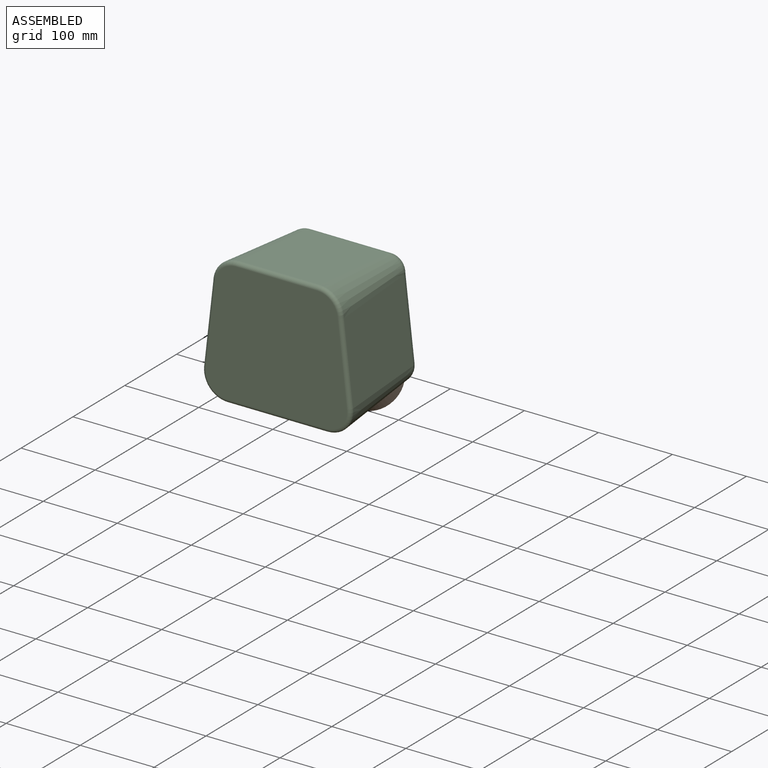
[diagram: assembled view]
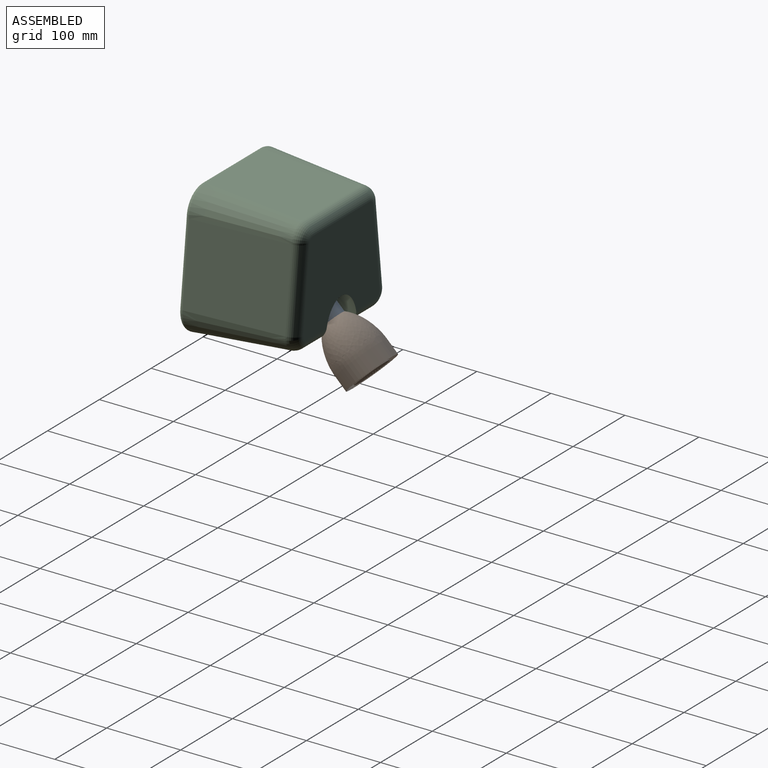
[diagram: assembled view, second angle]
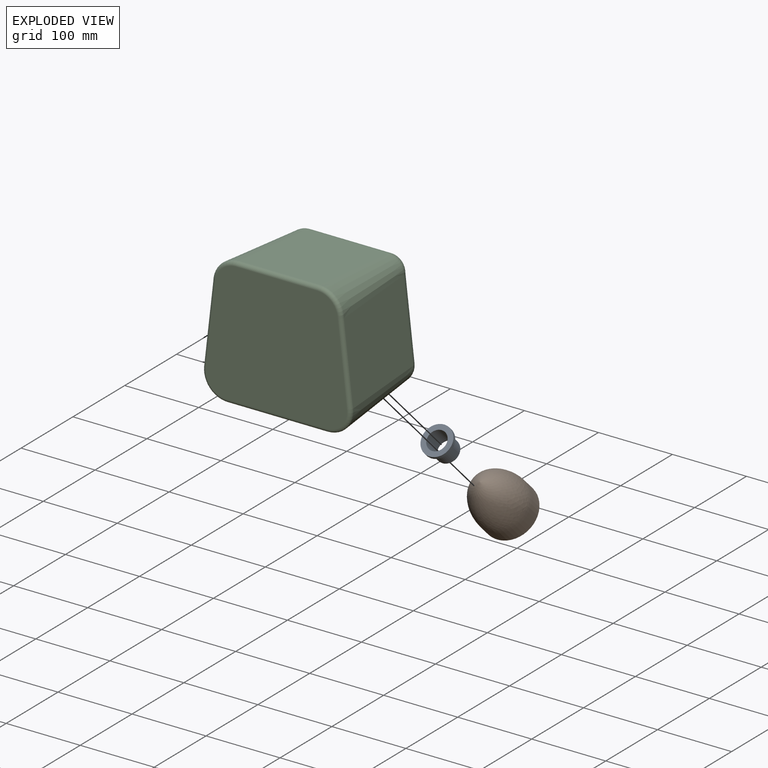
[diagram: exploded view]
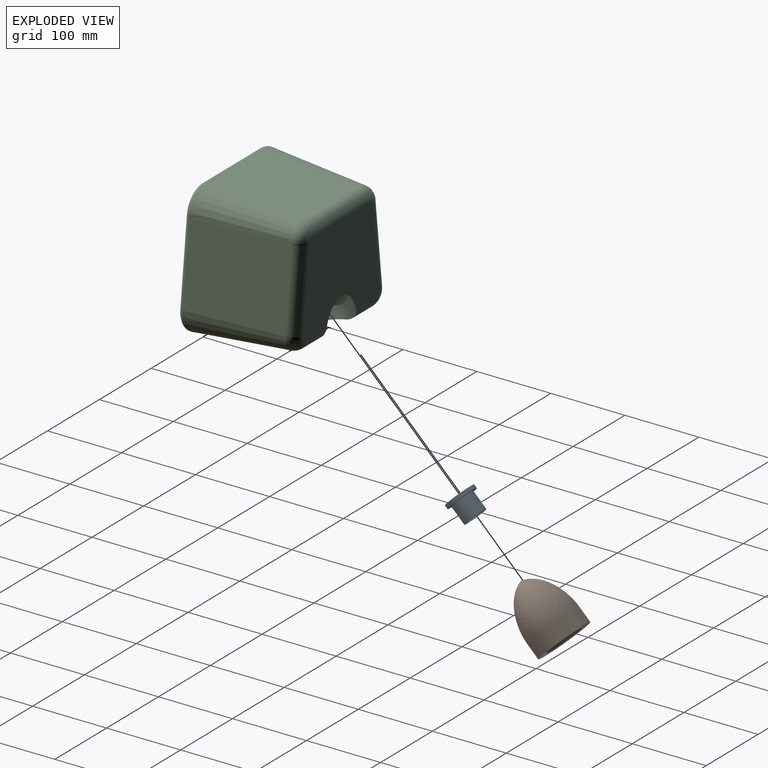
[diagram: exploded view, second angle]
ASSEMBLY  parts=3 mates=2
PART A: 6 faces, bbox 40x30x40 mm
  f0: cylinder r=13mm len=30mm, axis (0,1,0), area 2450.4mm2, adj f2,f3
  f1: cylinder r=15mm len=30mm, axis (0,1,0), area 2356.2mm2, adj f2,f5
  f2: plane 30x30mm, normal (0,-1,0), area 175.9mm2, adj f0,f1
  f3: plane 40x40mm, normal (0,1,0), area 725.7mm2, adj f0,f4
  f4: cylinder r=20mm len=40mm, axis (0,1,0), area 628.3mm2, adj f3,f5
  f5: plane 40x40mm, normal (0,-1,0), area 549.8mm2, adj f1,f4
PART B: 43 faces, bbox 71x82x71 mm
  f0: plane 69.4x69.4mm, normal (0,1,0), area 1973.2mm2, adj f2,f4
  f1: plane 48x48mm, normal (0,1,0), area 1753mm2, adj f2,f8,f10,f12,f14,f16,f18,f20
  f2: cylinder r=24mm len=48mm, axis (0,1,0), area 3091.3mm2, adj f0,f1
  f3: plane 71x71mm, normal (0,1,0), area 176.4mm2, adj f4,f5
  f4: cylinder r=34.7mm len=69.4mm, axis (0,-1,0), area 4469.5mm2, adj f0,f3
  f5: cylinder r=35.5mm len=71mm, axis (0,-1,0), area 4572.6mm2, adj f3,f6
  f6: revolved ~71x71mm, area 11353.6mm2, adj f5
  f7: cone r=0mm half-angle=59deg, axis (0,1,0), area 3.7mm2, adj f8
  f8: cylinder r=1mm len=30mm, axis (0,1,0), area 188.5mm2, adj f1,f7
  f9: cone r=0mm half-angle=59deg, axis (0,1,0), area 3.7mm2, adj f10
  f10: cylinder r=1mm len=30mm, axis (0,1,0), area 188.5mm2, adj f1,f9
  f11: cone r=0mm half-angle=59deg, axis (0,1,0), area 3.7mm2, adj f12
  f12: cylinder r=1mm len=30mm, axis (0,1,0), area 188.5mm2, adj f1,f11
  f13: cone r=0mm half-angle=59deg, axis (0,1,0), area 3.7mm2, adj f14
  f14: cylinder r=1mm len=30mm, axis (0,1,0), area 188.5mm2, adj f1,f13
  f15: cone r=0mm half-angle=59deg, axis (0,1,0), area 3.7mm2, adj f16
  f16: cylinder r=1mm len=30mm, axis (0,1,0), area 188.5mm2, adj f1,f15
  f17: cone r=0mm half-angle=59deg, axis (0,1,0), area 3.7mm2, adj f18
  f18: cylinder r=1mm len=30mm, axis (0,1,0), area 188.5mm2, adj f1,f17
  f19: cone r=0mm half-angle=59deg, axis (0,1,0), area 3.7mm2, adj f20
  f20: cylinder r=1mm len=30mm, axis (0,1,0), area 188.5mm2, adj f1,f19
  f21: cone r=0mm half-angle=59deg, axis (0,1,0), area 3.7mm2, adj f22
  f22: cylinder r=1mm len=30mm, axis (0,1,0), area 188.5mm2, adj f1,f21
  f23: cone r=0mm half-angle=59deg, axis (0,1,0), area 3.7mm2, adj f24
  f24: cylinder r=1mm len=30mm, axis (0,1,0), area 188.5mm2, adj f1,f23
  f25: cone r=0mm half-angle=59deg, axis (0,1,0), area 3.7mm2, adj f26
  f26: cylinder r=1mm len=30mm, axis (0,1,0), area 188.5mm2, adj f1,f25
  f27: cone r=0mm half-angle=59deg, axis (0,1,0), area 3.7mm2, adj f28
  f28: cylinder r=1mm len=30mm, axis (0,1,0), area 188.5mm2, adj f1,f27
  f29: cone r=0mm half-angle=59deg, axis (0,1,0), area 3.7mm2, adj f30
  f30: cylinder r=1mm len=30mm, axis (0,1,0), area 188.5mm2, adj f1,f29
  f31: cone r=0mm half-angle=59deg, axis (0,1,0), area 3.7mm2, adj f32
  f32: cylinder r=1mm len=30mm, axis (0,1,0), area 188.5mm2, adj f1,f31
  f33: cone r=0mm half-angle=59deg, axis (0,1,0), area 3.7mm2, adj f34
  f34: cylinder r=1mm len=30mm, axis (0,1,0), area 188.5mm2, adj f1,f33
  f35: cone r=0mm half-angle=59deg, axis (0,1,0), area 3.7mm2, adj f36
  f36: cylinder r=1mm len=30mm, axis (0,1,0), area 188.5mm2, adj f1,f35
  f37: cone r=0mm half-angle=59deg, axis (0,1,0), area 3.7mm2, adj f38
  f38: cylinder r=1mm len=30mm, axis (0,1,0), area 188.5mm2, adj f1,f37
  f39: cone r=0mm half-angle=59deg, axis (0,1,0), area 3.7mm2, adj f40
  f40: cylinder r=1mm len=30mm, axis (0,1,0), area 188.5mm2, adj f1,f39
  f41: cone r=0mm half-angle=59deg, axis (0,1,0), area 3.7mm2, adj f42
  f42: cylinder r=1mm len=30mm, axis (0,1,0), area 188.5mm2, adj f1,f41
PART C: 29 faces, bbox 205.9x167.4x183 mm
  f0: cylinder r=15mm len=39.45mm, axis (1,0,0), area 849.8mm2, adj f5,f11,f12,f28
  f1: cylinder r=15mm len=39.45mm, axis (1,0,0), area 849.8mm2, adj f5,f11,f14,f28
  f2: cone r=20mm half-angle=5deg, axis (0,-1,0), area 5503mm2, adj f3,f9,f15,f23
  f3: plane 130.97x108.48mm, normal (-0.99,0.09,0.11), area 14195.8mm2, adj f2,f4,f13,f21
  f4: cone r=20mm half-angle=5deg, axis (0,-1,0), area 5962mm2, adj f3,f5,f12,f19
  f5: plane 135.12x130.87mm, normal (0,0.09,-1), area 16706.1mm2, adj f0,f1,f4,f6,f20,f28
  f6: cone r=20mm half-angle=5deg, axis (0,-1,0), area 5962mm2, adj f5,f7,f14,f22
  f7: plane 130.97x108.48mm, normal (0.99,0.09,0.11), area 14195.8mm2, adj f6,f8,f16,f24
  f8: cone r=20mm half-angle=5deg, axis (0,-1,0), area 5503mm2, adj f7,f9,f18,f26
  f9: plane 130.87x110mm, normal (0,0.09,1), area 14450.9mm2, adj f2,f8,f17,f25
  f10: plane 190.45x165.33mm, normal (0,-1,0), area 28780.1mm2, adj f19,f20,f21,f22,f23,f24,f25,f26
  f11: plane 147.63x122.51mm, normal (0,1,0), area 15327.7mm2, adj f0,f1,f12,f13,f14,f15,f16,f17
  f12: torus R=6.26mm, axis (0,-1,0), area 580.9mm2, adj f0,f4,f11,f13
  f13: cylinder r=15mm len=110.43mm, axis (0.11,0,0.99), area 2419.4mm2, adj f3,f11,f12,f15
  f14: torus R=6.26mm, axis (0,-1,0), area 580.9mm2, adj f1,f6,f11,f16
  f15: torus R=6.26mm, axis (0,-1,0), area 546.1mm2, adj f2,f11,f13,f17
  f16: cylinder r=15mm len=110.43mm, axis (-0.11,0,0.99), area 2419.4mm2, adj f7,f11,f14,f18
  f17: cylinder r=15mm len=110mm, axis (1,0,0), area 2447.8mm2, adj f9,f11,f15,f18
  f18: torus R=6.26mm, axis (0,-1,0), area 546.1mm2, adj f8,f11,f16,f17
  f19: torus R=27.67mm, axis (0,-1,0), area 432.5mm2, adj f4,f10,f20,f21
  f20: cylinder r=5mm len=135.12mm, axis (1,0,0), area 1120.2mm2, adj f5,f10,f19,f22
  f21: cylinder r=5mm len=107.88mm, axis (-0.11,0,-0.99), area 894.5mm2, adj f3,f10,f19,f23
  f22: torus R=27.67mm, axis (0,-1,0), area 432.5mm2, adj f6,f10,f20,f24
  f23: torus R=27.67mm, axis (0,-1,0), area 397.2mm2, adj f2,f10,f21,f25
  f24: cylinder r=5mm len=107.88mm, axis (-0.11,0,0.99), area 894.5mm2, adj f7,f10,f22,f26
  f25: cylinder r=5mm len=110mm, axis (1,0,0), area 911.9mm2, adj f9,f10,f23,f26
  f26: torus R=27.67mm, axis (0,-1,0), area 397.2mm2, adj f8,f10,f24,f25
  f27: cone r=0mm half-angle=59deg, axis (0,0.71,-0.7), area 3298.6mm2, adj f28
  f28: cylinder r=30mm len=66.91mm, axis (0,0.71,-0.7), area 4122.1mm2, adj f0,f1,f5,f11,f27
PLACE A rot(axis=(1,0,0),135.3deg) t=(-217.53,-46.27,40.2)mm
PLACE B rot(axis=(-1,0,0),44.7deg) t=(-24.09,-38.36,-96.68)mm
PLACE C t=(-99.09,-79.65,-55.75)mm
MATE fastened A.f0 <-> C.f28  axis (0,-0.71,0.7) through (-24.09,-110.79,-24.88)mm
MATE fastened A.f0 <-> B.f2  axis (0,-0.71,0.7) through (-24.09,-89.49,-46)mm
